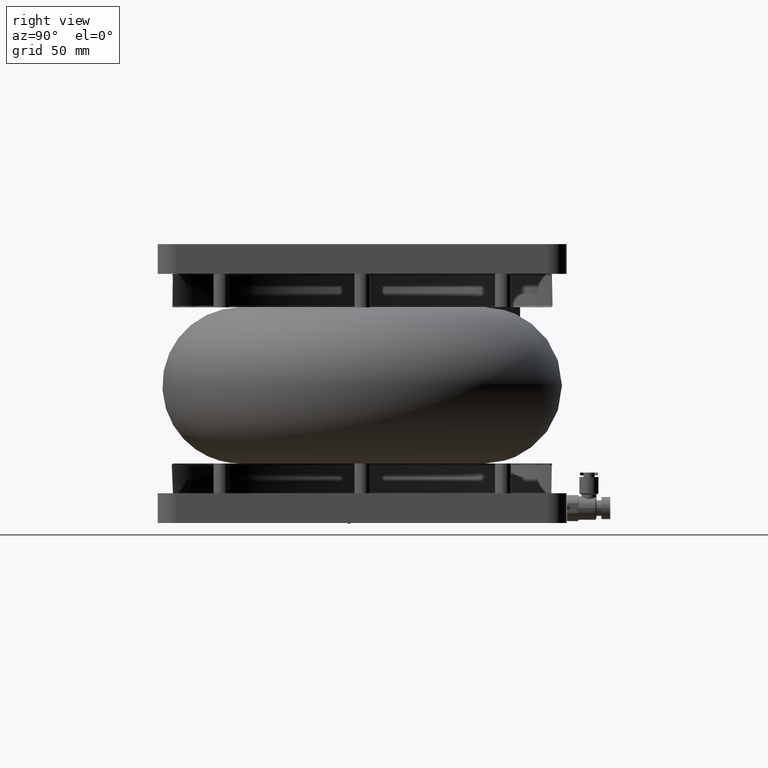
[diagram: clean part render]
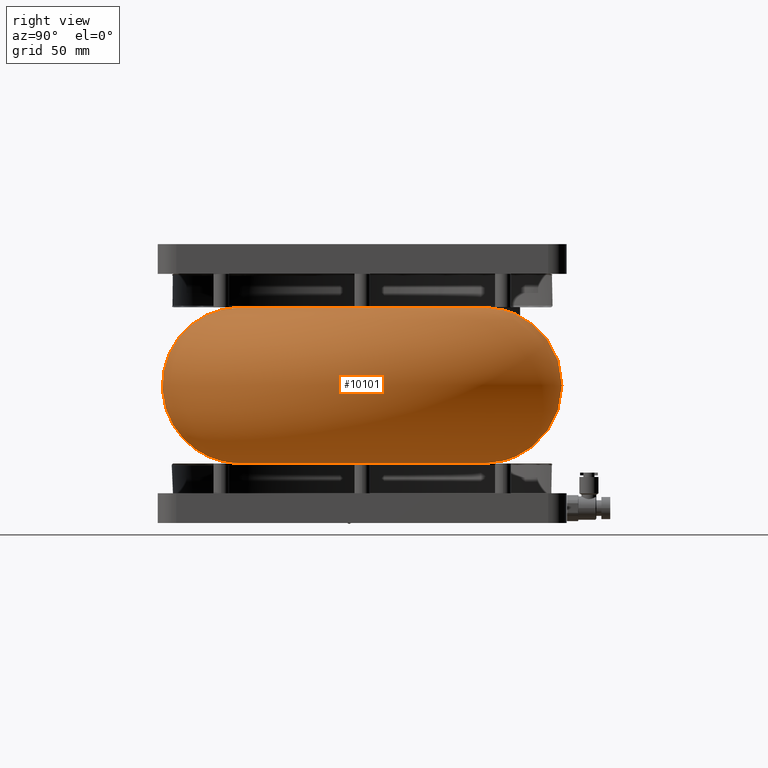
[diagram: same view with one face highlighted and labeled with its STEP entity id]
A machine part, right view. The second image highlights one B-rep face of the part: STEP entity #10101.
In plain terms, the highlighted face is a freeform B-spline surface patch.
Its self-contained STEP definition (entity closure, byte-faithful):
#663 = CARTESIAN_POINT ( 'NONE',  ( 129.3094785136834446, -25.54586439068697601, 121.0095076401897245 ) ) ;
#727 = CARTESIAN_POINT ( 'NONE',  ( -164.5476643434595019, 121.3827070378844866, 122.7234052875288484 ) ) ;
#2510 = CARTESIAN_POINT ( 'NONE',  ( 129.3094785136834446, 40.84775263058959638, 121.0095076401897245 ) ) ;
#2790 = CARTESIAN_POINT ( 'NONE',  ( 129.3094785136834446, -172.4744358192584173, 122.7234052875288484 ) ) ;
#2930 = CARTESIAN_POINT ( 'NONE',  ( 129.3094785136834446, -25.54586439068697601, 204.9904923598102755 ) ) ;
#2943 = CARTESIAN_POINT ( 'NONE',  ( 129.3094785136834446, -91.93948141196358392, 204.9904923598102755 ) ) ;
#3165 = EDGE_LOOP ( 'NONE', ( #11416 ) ) ;
#4386 =( BOUNDED_SURFACE ( )  B_SPLINE_SURFACE ( 3, 3, ( 
 ( #16269, #14330, #16412, #22757, #11659, #20682, #2943 ),
 ( #23353, #5301, #7372, #18466, #11508, #27496, #7223 ),
 ( #25421, #25276, #7075, #20983, #727, #4728, #2790 ),
 ( #21127, #12097, #16552, #2510, #22906, #18618, #20539 ) ),
 .UNSPECIFIED., .F., .T., .F. ) 
 B_SPLINE_SURFACE_WITH_KNOTS ( ( 4, 4 ),
 ( 4, 3, 4 ),
 ( 0.000000000000000000, 1.000000000000000000 ),
 ( 0.000000000000000000, 0.5000000000000000000, 1.000000000000000000 ),
 .UNSPECIFIED. ) 
 GEOMETRIC_REPRESENTATION_ITEM ( )  RATIONAL_B_SPLINE_SURFACE ( (
 ( 1.000000000000000000, 0.3333333333333333148, 0.3333333333333333148, 1.000000000000000000, 0.3333333333333333148, 0.3333333333333333148, 1.000000000000000000),
 ( 0.3475177304964537361, 0.1158392434988179120, 0.1158392434988179120, 0.3475177304964537361, 0.1158392434988179120, 0.1158392434988179120, 0.3475177304964537361),
 ( 0.3475177304964537361, 0.1158392434988179120, 0.1158392434988179120, 0.3475177304964537361, 0.1158392434988179120, 0.1158392434988179120, 0.3475177304964537361),
 ( 1.000000000000000000, 0.3333333333333333148, 0.3333333333333333148, 1.000000000000000000, 0.3333333333333333148, 0.3333333333333333148, 1.000000000000000000) ) ) 
 REPRESENTATION_ITEM ( '' )  SURFACE ( )  );
#4728 = CARTESIAN_POINT ( 'NONE',  ( -164.5476643434594450, -172.4744358192584173, 122.7234052875288484 ) ) ;
#5242 = AXIS2_PLACEMENT_3D ( 'NONE', #663, #20081, #27579 ) ;
#5301 = CARTESIAN_POINT ( 'NONE',  ( 423.1666213708264195, -172.4744358192584741, 203.2765947124710806 ) ) ;
#6442 = CARTESIAN_POINT ( 'NONE',  ( 129.3094785136834446, -91.93948141196356971, 121.0095076401897245 ) ) ;
#7075 = CARTESIAN_POINT ( 'NONE',  ( 423.1666213708263058, 121.3827070378844724, 122.7234052875288484 ) ) ;
#7223 = CARTESIAN_POINT ( 'NONE',  ( 129.3094785136834446, -172.4744358192584741, 203.2765947124710806 ) ) ;
#7372 = CARTESIAN_POINT ( 'NONE',  ( 423.1666213708264195, 121.3827070378845150, 203.2765947124710806 ) ) ;
#9441 = FACE_OUTER_BOUND ( 'NONE', #3165, .T. ) ;
#9737 = FACE_OUTER_BOUND ( 'NONE', #29043, .T. ) ;
#9869 = DIRECTION ( 'NONE',  ( -0.000000000000000000, -0.000000000000000000, -1.000000000000000000 ) ) ;
#10101 = ADVANCED_FACE ( 'NONE', ( #9737, #9441 ), #4386, .T. ) ;
#11416 = ORIENTED_EDGE ( 'NONE', *, *, #23978, .T. ) ;
#11491 = EDGE_CURVE ( 'NONE', #26720, #26720, #18017, .T. ) ;
#11508 = CARTESIAN_POINT ( 'NONE',  ( -164.5476643434595303, 121.3827070378845150, 203.2765947124710806 ) ) ;
#11659 = CARTESIAN_POINT ( 'NONE',  ( -3.477755528869780566, 40.84775263058962480, 204.9904923598102755 ) ) ;
#12026 = CIRCLE ( 'NONE', #20079, 66.39361702127661147 ) ;
#12097 = CARTESIAN_POINT ( 'NONE',  ( 262.0967125562365823, -91.93948141196355550, 121.0095076401897387 ) ) ;
#14330 = CARTESIAN_POINT ( 'NONE',  ( 262.0967125562366959, -91.93948141196358392, 204.9904923598102755 ) ) ;
#16269 = CARTESIAN_POINT ( 'NONE',  ( 129.3094785136834446, -91.93948141196358392, 204.9904923598102755 ) ) ;
#16412 = CARTESIAN_POINT ( 'NONE',  ( 262.0967125562366959, 40.84775263058962480, 204.9904923598102755 ) ) ;
#16552 = CARTESIAN_POINT ( 'NONE',  ( 262.0967125562365823, 40.84775263058959638, 121.0095076401897387 ) ) ;
#16941 = CARTESIAN_POINT ( 'NONE',  ( 129.3094785136834446, -91.93948141196359813, 204.9904923598102755 ) ) ;
#17400 = ORIENTED_EDGE ( 'NONE', *, *, #11491, .T. ) ;
#18017 = CIRCLE ( 'NONE', #5242, 66.39361702127658305 ) ;
#18466 = CARTESIAN_POINT ( 'NONE',  ( 129.3094785136834446, 121.3827070378845150, 203.2765947124710806 ) ) ;
#18618 = CARTESIAN_POINT ( 'NONE',  ( -3.477755528869724611, -91.93948141196355550, 121.0095076401897387 ) ) ;
#20079 = AXIS2_PLACEMENT_3D ( 'NONE', #2930, #9869, #23336 ) ;
#20081 = DIRECTION ( 'NONE',  ( 0.000000000000000000, 0.000000000000000000, 1.000000000000000000 ) ) ;
#20539 = CARTESIAN_POINT ( 'NONE',  ( 129.3094785136834446, -91.93948141196355550, 121.0095076401897245 ) ) ;
#20682 = CARTESIAN_POINT ( 'NONE',  ( -3.477755528869780566, -91.93948141196358392, 204.9904923598102755 ) ) ;
#20983 = CARTESIAN_POINT ( 'NONE',  ( 129.3094785136834446, 121.3827070378844724, 122.7234052875288484 ) ) ;
#21127 = CARTESIAN_POINT ( 'NONE',  ( 129.3094785136834446, -91.93948141196355550, 121.0095076401897245 ) ) ;
#22757 = CARTESIAN_POINT ( 'NONE',  ( 129.3094785136834446, 40.84775263058962480, 204.9904923598102755 ) ) ;
#22906 = CARTESIAN_POINT ( 'NONE',  ( -3.477755528869724611, 40.84775263058959638, 121.0095076401897387 ) ) ;
#23336 = DIRECTION ( 'NONE',  ( 0.000000000000000000, -1.000000000000000000, 0.000000000000000000 ) ) ;
#23353 = CARTESIAN_POINT ( 'NONE',  ( 129.3094785136834446, -172.4744358192584741, 203.2765947124710806 ) ) ;
#23978 = EDGE_CURVE ( 'NONE', #24174, #24174, #12026, .T. ) ;
#24174 = VERTEX_POINT ( 'NONE', #16941 ) ;
#25276 = CARTESIAN_POINT ( 'NONE',  ( 423.1666213708263058, -172.4744358192584173, 122.7234052875288484 ) ) ;
#25421 = CARTESIAN_POINT ( 'NONE',  ( 129.3094785136834446, -172.4744358192584173, 122.7234052875288484 ) ) ;
#26720 = VERTEX_POINT ( 'NONE', #6442 ) ;
#27496 = CARTESIAN_POINT ( 'NONE',  ( -164.5476643434595303, -172.4744358192584741, 203.2765947124710806 ) ) ;
#27579 = DIRECTION ( 'NONE',  ( 0.000000000000000000, -1.000000000000000000, 0.000000000000000000 ) ) ;
#29043 = EDGE_LOOP ( 'NONE', ( #17400 ) ) ;